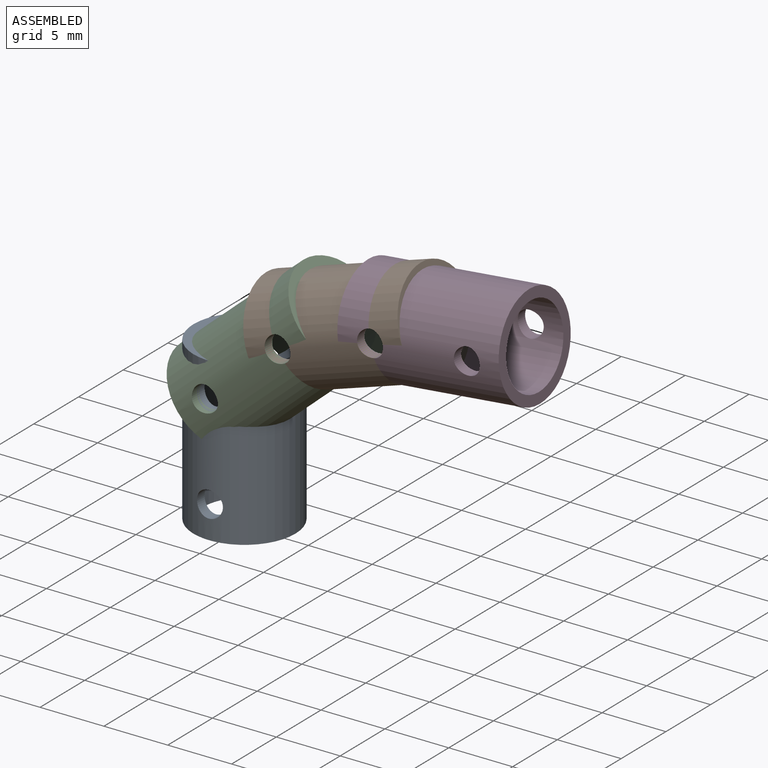
[diagram: assembled view]
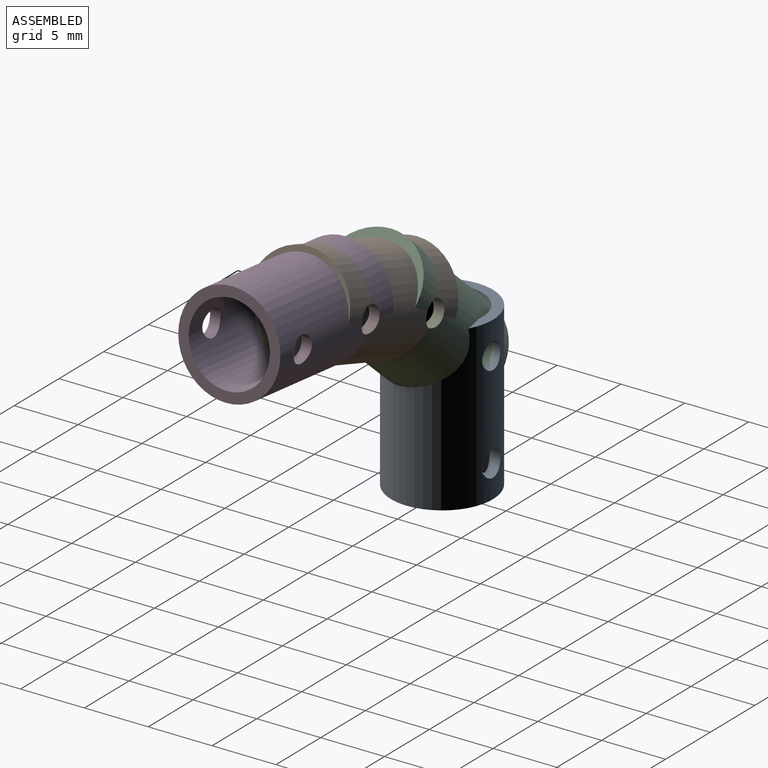
[diagram: assembled view, second angle]
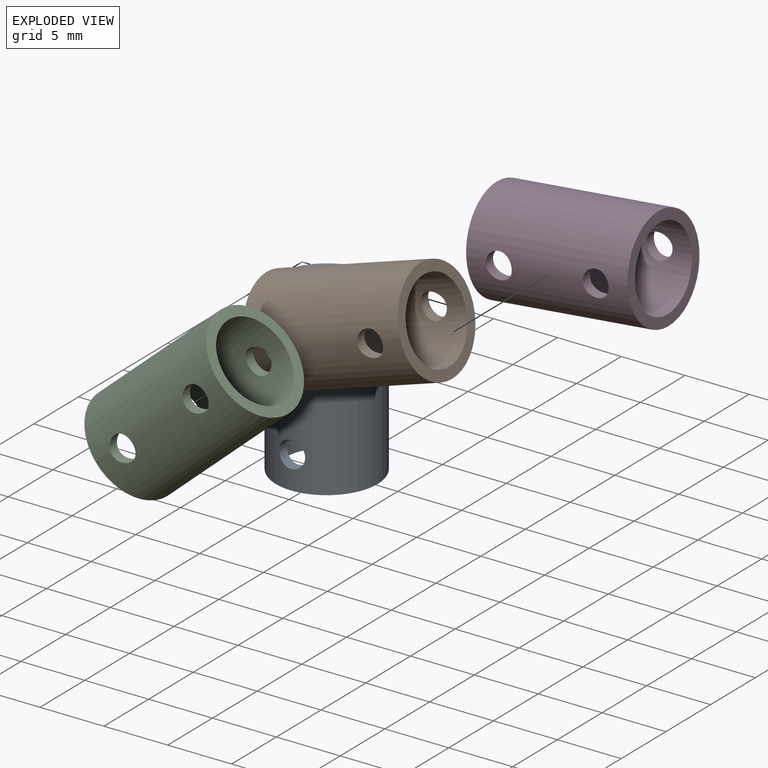
[diagram: exploded view]
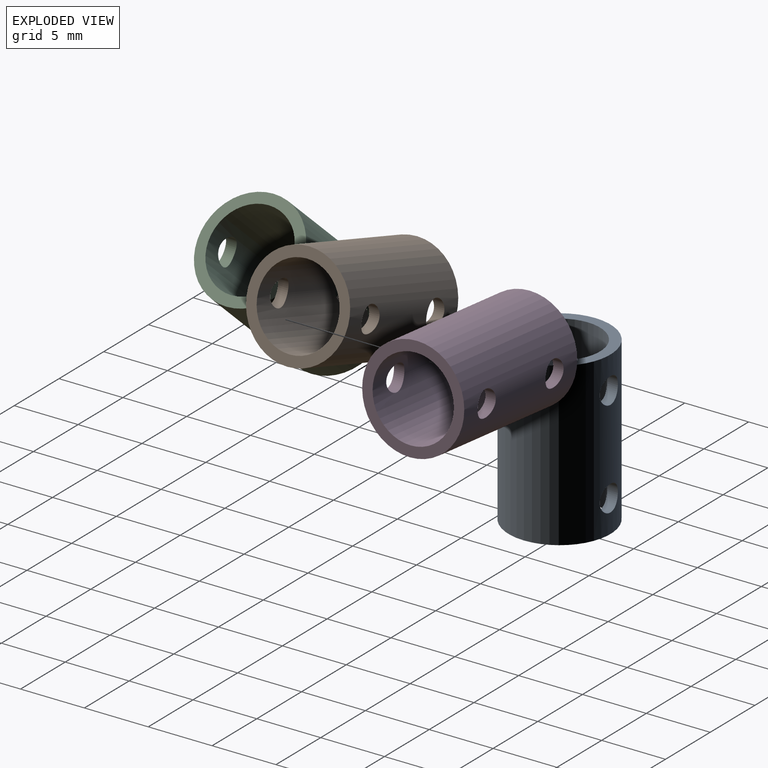
[diagram: exploded view, second angle]
ASSEMBLY  parts=4 mates=3
PART A: 8 faces, bbox 12.7x8x8 mm
  f0: plane 7.98x7.98mm, normal (1,0,0), area 18.3mm2, adj f1,f3
  f1: cylinder r=3.99mm len=12.7mm, axis (-1,0,0), area 305.1mm2, adj f0,f2,f4,f5,f6,f7
  f2: plane 7.98x7.98mm, normal (-1,0,0), area 18.3mm2, adj f1,f3
  f3: cylinder r=3.17mm len=12.7mm, axis (-1,0,0), area 240.2mm2, adj f0,f2,f4,f5,f6,f7
  f4: cylinder r=1.02mm len=2.03mm, axis (0,-1,0), area 5.3mm2, adj f1,f3
  f5: cylinder r=1.02mm len=2.03mm, axis (0,-1,0), area 5.3mm2, adj f1,f3
  f6: cylinder r=1.02mm len=2.03mm, axis (0,-1,0), area 5.3mm2, adj f1,f3
  f7: cylinder r=1.02mm len=2.03mm, axis (0,-1,0), area 5.3mm2, adj f1,f3
PART B: same geometry as A
PART C: same geometry as A
PART D: same geometry as A
PLACE A rot(axis=(-0.71,0,0.71),180deg) t=(0,0,6.35)mm
PLACE B rot(axis=(-0.16,0,0.99),180deg) t=(9.34,-0.5,16.37)mm
PLACE C rot(axis=(-0.35,0,0.94),180deg) t=(2.86,-0.5,12.68)mm
PLACE D rot(axis=(-0.05,0,1),180deg) t=(16.76,-0.5,17.92)mm
MATE revolute A.f4 <-> C.f6  axis (0,1,0) through (0,-4,10.16)mm
MATE revolute B.f4 <-> D.f6  axis (0,1,0) through (12.97,3.5,17.54)mm
MATE revolute B.f6 <-> C.f4  axis (0,1,0) through (5.72,-4,15.2)mm
